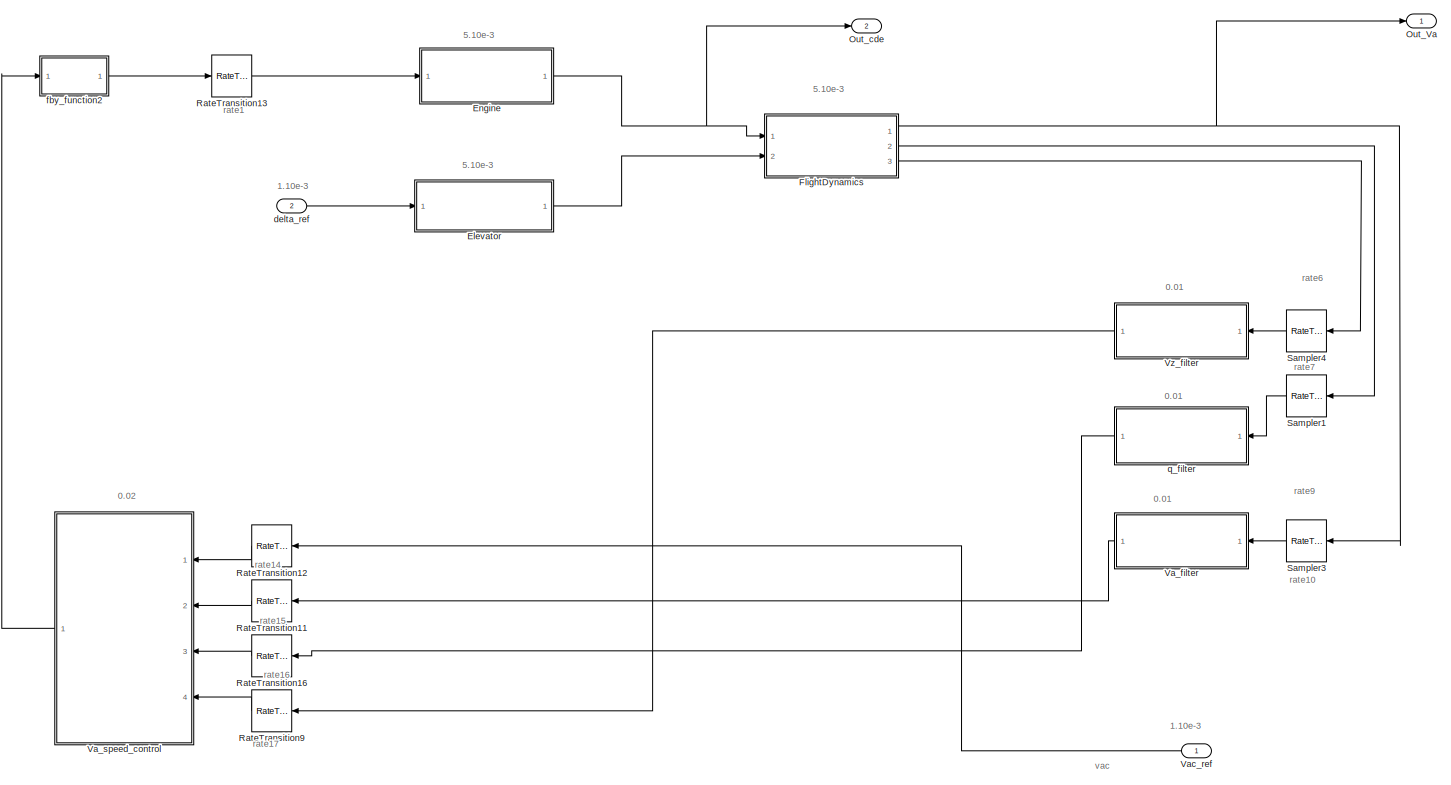
[diagram: root canvas - part 1/1, most of the canvas]
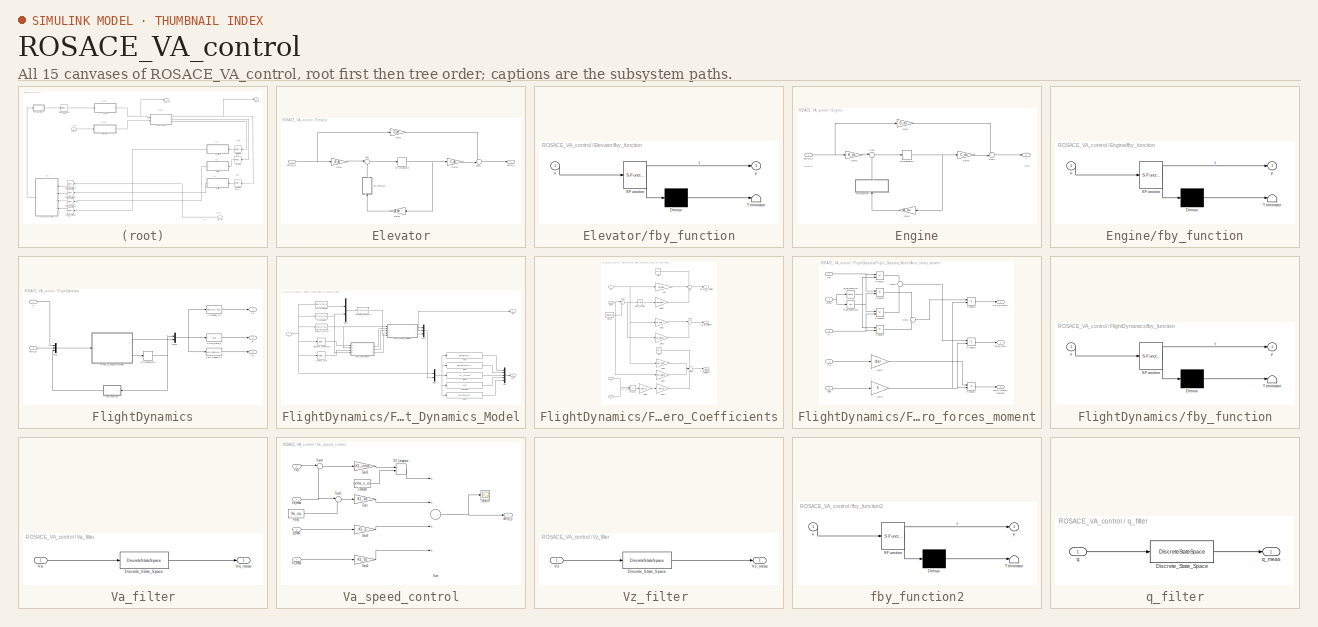
[diagram: thumbnail index - all 15 canvases of the model, root first then tree order]
MODEL ROSACE_VA_control
KIND model
BLOCK [SubSystem] Elevator
  FunctionWithSeparateData = off
  MaskHideContents = off
  MinAlgLoopOccurrences = off
  Opaque = off
  Ports = [1, 1]
  PropExecContextOutsideSubsystem = off
  RTWSystemCode = Auto
  RequestExecContextInheritance = off
  SID = 32
BLOCK [DiscreteIntegrator] Elevator/DT_Integrator
  ExternalReset = none
  ICPrevOutput = DiscIntNeverNeededParam
  ICPrevScaledInput = DiscIntNeverNeededParam
  InitialCondition = CI_de
  InitialConditionSource = internal
  IntegratorMethod = Integration: Forward Euler
  Ports = [1, 1]
  SID = 34
  SampleTime = dt_dx
BLOCK [Gain] Elevator/Gain
  Gain = D_de
  Multiplication = Matrix(K*u)
  SID = 35
  SaturateOnIntegerOverflow = off
BLOCK [Gain] Elevator/Gain1
  Gain = B_de
  Multiplication = Matrix(K*u)
  SID = 36
  SaturateOnIntegerOverflow = off
BLOCK [Gain] Elevator/Gain2
  Gain = A_de
  Multiplication = Matrix(K*u)
  SID = 37
  SaturateOnIntegerOverflow = off
BLOCK [Gain] Elevator/Gain3
  Gain = C_de
  Multiplication = Matrix(K*u)
  SID = 38
  SaturateOnIntegerOverflow = off
BLOCK [Sum] Elevator/Sum
  IconShape = round
  InputSameDT = off
  Inputs = |++
  Ports = [2, 1]
  SID = 39
  SaturateOnIntegerOverflow = off
BLOCK [Sum] Elevator/Sum1
  IconShape = round
  InputSameDT = off
  Inputs = ++|
  Ports = [2, 1]
  SID = 40
  SaturateOnIntegerOverflow = off
BLOCK [Outport] Elevator/delta_e
  IconDisplay = Port number
  SID = 41
BLOCK [Inport] Elevator/delta_e_c
  IconDisplay = Port number
  SID = 33
BLOCK [SubSystem] Elevator/fby_function
  ErrorFcn = Stateflow.Translate.translate
  FunctionWithSeparateData = off
  MaskDescription = Embedded MATLAB block
  MaskDisplay = bgColor = Simulink.Root.ColorString2Rgb(get_param(gcbh, 'BackgroundColor')); image(imread('private/eml_membrane_16.png','png','BackgroundColor',bgColor(1:3)),'center'); disp([10 10 'fcn']);  <repeated x4 — deduplicated; at blocks: fby_function, fby_function2>
  MaskHideContents = off
  MaskIconFrame = on
  MaskIconOpaque = off
  MaskIconRotate = none
  MaskIconUnits = normalized
  MaskPortRotate = default
  MaskSelfModifiable = on
  MaskType = Stateflow
  MinAlgLoopOccurrences = off
  Opaque = off
  PermitHierarchicalResolution = ExplicitOnly
  Ports = [1, 1]
  PropExecContextOutsideSubsystem = off
  RTWSystemCode = Auto
  RequestExecContextInheritance = off
  SFBlockType = MATLAB Function
  SID = 267
  TreatAsAtomicUnit = on
BLOCK [Demux] Elevator/fby_function/ Demux 
  Outputs = 1
  Ports = [1, 1]
  SID = 267::7
BLOCK [S-Function] Elevator/fby_function/ SFunction 
  EnableBusSupport = on
  FunctionName = sf_sfun
  PortCounts = [1 2]
  Ports = [1, 2]
  SID = 267::6
  Tag = Stateflow S-Function ROSACE_VA_control 4
BLOCK [Terminator] Elevator/fby_function/ Terminator 
  SID = 267::9
BLOCK [Inport] Elevator/fby_function/u
  IconDisplay = Port number
  SID = 267::1
BLOCK [Outport] Elevator/fby_function/y
  IconDisplay = Port number
  SID = 267::5
BLOCK [SubSystem] Engine
  FunctionWithSeparateData = off
  MaskHideContents = off
  MinAlgLoopOccurrences = off
  Opaque = off
  Ports = [1, 1]
  PropExecContextOutsideSubsystem = off
  RTWSystemCode = Auto
  RequestExecContextInheritance = off
  SID = 42
BLOCK [DiscreteIntegrator] Engine/DTIntegrator2
  ExternalReset = none
  ICPrevOutput = DiscIntNeverNeededParam
  ICPrevScaledInput = DiscIntNeverNeededParam
  InitialCondition = CI_dx
  InitialConditionSource = internal
  IntegratorMethod = Integration: Forward Euler
  Ports = [1, 1]
  SID = 44
  SampleTime = dt_dx
BLOCK [Gain] Engine/Gain
  Gain = D_dx
  Multiplication = Matrix(K*u)
  SID = 45
  SaturateOnIntegerOverflow = off
BLOCK [Gain] Engine/Gain1
  Gain = B_dx
  Multiplication = Matrix(K*u)
  SID = 46
  SaturateOnIntegerOverflow = off
BLOCK [Gain] Engine/Gain2
  Gain = A_dx
  Multiplication = Matrix(K*u)
  SID = 47
  SaturateOnIntegerOverflow = off
BLOCK [Gain] Engine/Gain3
  Gain = C_dx
  Multiplication = Matrix(K*u)
  SID = 48
  SaturateOnIntegerOverflow = off
BLOCK [Sum] Engine/Sum
  IconShape = round
  InputSameDT = off
  Inputs = |++
  Ports = [2, 1]
  SID = 49
  SaturateOnIntegerOverflow = off
BLOCK [Sum] Engine/Sum1
  IconShape = round
  InputSameDT = off
  Inputs = ++|
  Ports = [2, 1]
  SID = 50
  SaturateOnIntegerOverflow = off
BLOCK [Outport] Engine/T
  IconDisplay = Port number
  SID = 51
BLOCK [Inport] Engine/delta_x_c
  IconDisplay = Port number
  SID = 43
BLOCK [SubSystem] Engine/fby_function
  ErrorFcn = Stateflow.Translate.translate
  FunctionWithSeparateData = off
  MaskDescription = Embedded MATLAB block
  MaskHideContents = off
  MaskIconFrame = on
  MaskIconOpaque = off
  MaskIconRotate = none
  MaskIconUnits = normalized
  MaskPortRotate = default
  MaskSelfModifiable = on
  MaskType = Stateflow
  MinAlgLoopOccurrences = off
  Opaque = off
  PermitHierarchicalResolution = ExplicitOnly
  Ports = [1, 1]
  PropExecContextOutsideSubsystem = off
  RTWSystemCode = Auto
  RequestExecContextInheritance = off
  SFBlockType = MATLAB Function
  SID = 266
  TreatAsAtomicUnit = on
BLOCK [Demux] Engine/fby_function/ Demux 
  Outputs = 1
  Ports = [1, 1]
  SID = 266::7
BLOCK [S-Function] Engine/fby_function/ SFunction 
  EnableBusSupport = on
  FunctionName = sf_sfun
  PortCounts = [1 2]
  Ports = [1, 2]
  SID = 266::6
  Tag = Stateflow S-Function ROSACE_VA_control 3
BLOCK [Terminator] Engine/fby_function/ Terminator 
  SID = 266::9
BLOCK [Inport] Engine/fby_function/u
  IconDisplay = Port number
  SID = 266::1
BLOCK [Outport] Engine/fby_function/y
  IconDisplay = Port number
  SID = 266::5
BLOCK [SubSystem] FlightDynamics
  FunctionWithSeparateData = off
  MaskHideContents = off
  MinAlgLoopOccurrences = off
  Opaque = off
  Ports = [2, 3]
  PropExecContextOutsideSubsystem = off
  RTWSystemCode = Auto
  RequestExecContextInheritance = off
  SID = 52
BLOCK [Fcn] FlightDynamics/Airspeed_Va  
  Expr = sqrt(u(1)^2+u(2)^2)
  SID = 55
BLOCK [DiscreteIntegrator] FlightDynamics/DTIntegrator3
  ExternalReset = none
  ICPrevOutput = DiscIntNeverNeededParam
  ICPrevScaledInput = DiscIntNeverNeededParam
  InitialCondition = CI_FD
  InitialConditionSource = internal
  IntegratorMethod = Integration: Forward Euler
  Ports = [1, 1]
  SID = 57
  SampleTime = dt_dx
BLOCK [SubSystem] FlightDynamics/Flight_Dynamics_Model
  FunctionWithSeparateData = off
  MaskHideContents = off
  MinAlgLoopOccurrences = off
  Opaque = off
  Ports = [1, 2]
  PropExecContextOutsideSubsystem = off
  RTWSystemCode = Auto
  RequestExecContextInheritance = off
  SID = 58
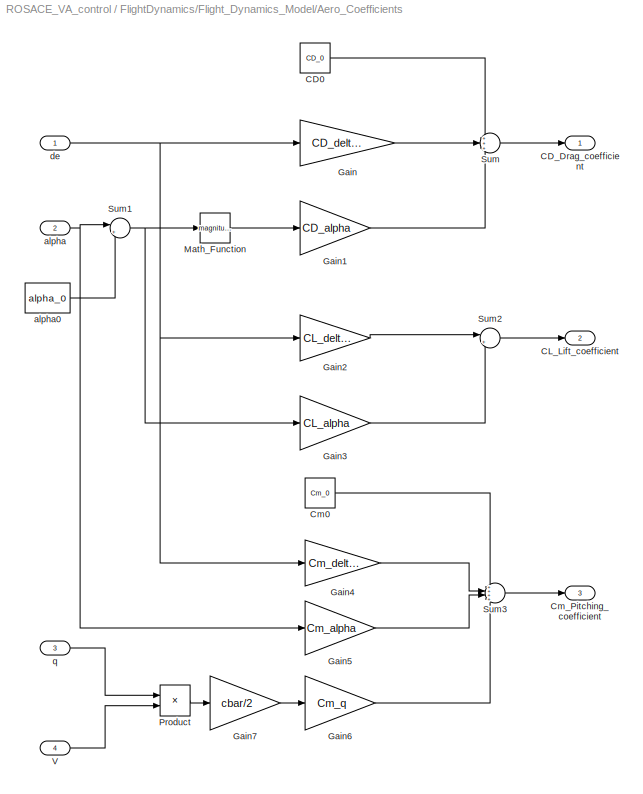
BLOCK [SubSystem] FlightDynamics/Flight_Dynamics_Model/Aero_Coefficients
  FunctionWithSeparateData = off
  MaskHideContents = off
  MinAlgLoopOccurrences = off
  Opaque = off
  Ports = [4, 3]
  PropExecContextOutsideSubsystem = off
  RTWSystemCode = Auto
  RequestExecContextInheritance = off
  SID = 233
BLOCK [Constant] FlightDynamics/Flight_Dynamics_Model/Aero_Coefficients/CD0
  SID = 238
  SampleTime = -1
  Value = CD_0
BLOCK [Outport] FlightDynamics/Flight_Dynamics_Model/Aero_Coefficients/CD_Drag_coefficient
  IconDisplay = Port number
  SID = 255
BLOCK [Outport] FlightDynamics/Flight_Dynamics_Model/Aero_Coefficients/CL_Lift_coefficient
  IconDisplay = Port number
  Port = 2
  SID = 256
BLOCK [Constant] FlightDynamics/Flight_Dynamics_Model/Aero_Coefficients/Cm0
  SID = 239
  SampleTime = -1
  Value = Cm_0
BLOCK [Outport] FlightDynamics/Flight_Dynamics_Model/Aero_Coefficients/Cm_Pitching_coefficient
  IconDisplay = Port number
  Port = 3
  SID = 257
BLOCK [Gain] FlightDynamics/Flight_Dynamics_Model/Aero_Coefficients/Gain
  Gain = CD_deltae
  SID = 240
  SaturateOnIntegerOverflow = off
BLOCK [Gain] FlightDynamics/Flight_Dynamics_Model/Aero_Coefficients/Gain1
  Gain = CD_alpha
  SID = 241
  SaturateOnIntegerOverflow = off
BLOCK [Gain] FlightDynamics/Flight_Dynamics_Model/Aero_Coefficients/Gain2
  Gain = CL_deltae
  SID = 242
  SaturateOnIntegerOverflow = off
BLOCK [Gain] FlightDynamics/Flight_Dynamics_Model/Aero_Coefficients/Gain3
  Gain = CL_alpha
  SID = 243
  SaturateOnIntegerOverflow = off
BLOCK [Gain] FlightDynamics/Flight_Dynamics_Model/Aero_Coefficients/Gain4
  Gain = Cm_deltae
  SID = 244
  SaturateOnIntegerOverflow = off
BLOCK [Gain] FlightDynamics/Flight_Dynamics_Model/Aero_Coefficients/Gain5
  Gain = Cm_alpha
  SID = 245
  SaturateOnIntegerOverflow = off
BLOCK [Gain] FlightDynamics/Flight_Dynamics_Model/Aero_Coefficients/Gain6
  Gain = Cm_q
  SID = 246
  SaturateOnIntegerOverflow = off
BLOCK [Gain] FlightDynamics/Flight_Dynamics_Model/Aero_Coefficients/Gain7
  Gain = cbar/2
  SID = 247
  SaturateOnIntegerOverflow = off
BLOCK [Math] FlightDynamics/Flight_Dynamics_Model/Aero_Coefficients/Math_Function
  Operator = magnitude^2
  Ports = [1, 1]
  SID = 248
BLOCK [Product] FlightDynamics/Flight_Dynamics_Model/Aero_Coefficients/Product
  InputSameDT = off
  Inputs = */
  Ports = [2, 1]
  SID = 249
  SaturateOnIntegerOverflow = off
BLOCK [Sum] FlightDynamics/Flight_Dynamics_Model/Aero_Coefficients/Sum
  IconShape = round
  InputSameDT = off
  Inputs = +++
  Ports = [3, 1]
  SID = 250
  SaturateOnIntegerOverflow = off
BLOCK [Sum] FlightDynamics/Flight_Dynamics_Model/Aero_Coefficients/Sum1
  IconShape = round
  InputSameDT = off
  Inputs = |+-
  Ports = [2, 1]
  SID = 251
  SaturateOnIntegerOverflow = off
BLOCK [Sum] FlightDynamics/Flight_Dynamics_Model/Aero_Coefficients/Sum2
  IconShape = round
  InputSameDT = off
  Inputs = |++
  Ports = [2, 1]
  SID = 252
  SaturateOnIntegerOverflow = off
BLOCK [Sum] FlightDynamics/Flight_Dynamics_Model/Aero_Coefficients/Sum3
  IconShape = round
  InputSameDT = off
  Inputs = ++++
  Ports = [4, 1]
  SID = 253
  SaturateOnIntegerOverflow = off
BLOCK [Inport] FlightDynamics/Flight_Dynamics_Model/Aero_Coefficients/V
  IconDisplay = Port number
  Port = 4
  SID = 237
BLOCK [Inport] FlightDynamics/Flight_Dynamics_Model/Aero_Coefficients/alpha
  IconDisplay = Port number
  Port = 2
  SID = 235
BLOCK [Constant] FlightDynamics/Flight_Dynamics_Model/Aero_Coefficients/alpha0
  SID = 254
  SampleTime = -1
  Value = alpha_0
BLOCK [Inport] FlightDynamics/Flight_Dynamics_Model/Aero_Coefficients/de
  IconDisplay = Port number
  SID = 234
BLOCK [Inport] FlightDynamics/Flight_Dynamics_Model/Aero_Coefficients/q
  IconDisplay = Port number
  Port = 3
  SID = 236
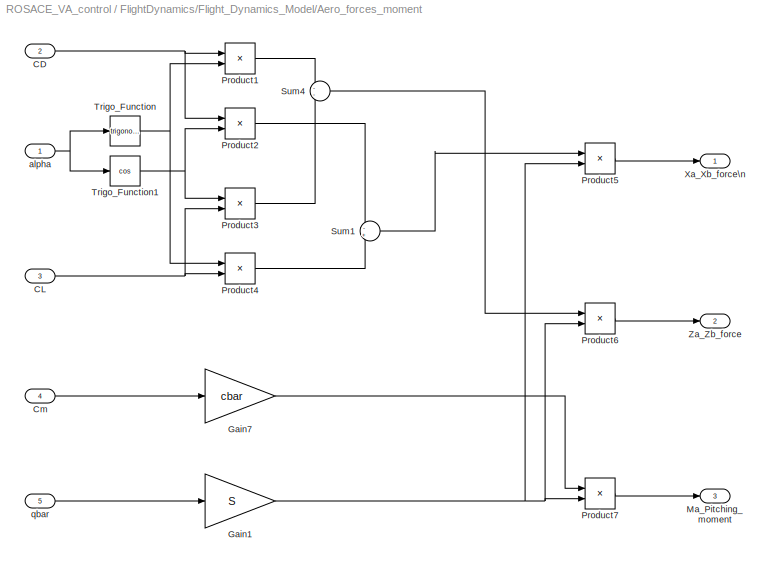
BLOCK [SubSystem] FlightDynamics/Flight_Dynamics_Model/Aero_forces_moment
  FunctionWithSeparateData = off
  MaskHideContents = off
  MinAlgLoopOccurrences = off
  Opaque = off
  Ports = [5, 3]
  PropExecContextOutsideSubsystem = off
  RTWSystemCode = Auto
  RequestExecContextInheritance = off
  SID = 85
BLOCK [Inport] FlightDynamics/Flight_Dynamics_Model/Aero_forces_moment/CD
  IconDisplay = Port number
  Port = 2
  SID = 87
BLOCK [Inport] FlightDynamics/Flight_Dynamics_Model/Aero_forces_moment/CL
  IconDisplay = Port number
  Port = 3
  SID = 88
BLOCK [Inport] FlightDynamics/Flight_Dynamics_Model/Aero_forces_moment/Cm
  IconDisplay = Port number
  Port = 4
  SID = 89
BLOCK [Gain] FlightDynamics/Flight_Dynamics_Model/Aero_forces_moment/Gain1
  Gain = S
  SID = 91
  SaturateOnIntegerOverflow = off
BLOCK [Gain] FlightDynamics/Flight_Dynamics_Model/Aero_forces_moment/Gain7
  Gain = cbar
  SID = 92
  SaturateOnIntegerOverflow = off
BLOCK [Outport] FlightDynamics/Flight_Dynamics_Model/Aero_forces_moment/Ma_Pitching_moment
  IconDisplay = Port number
  Port = 3
  SID = 106
BLOCK [Product] FlightDynamics/Flight_Dynamics_Model/Aero_forces_moment/Product1
  InputSameDT = off
  Ports = [2, 1]
  SID = 93
  SaturateOnIntegerOverflow = off
BLOCK [Product] FlightDynamics/Flight_Dynamics_Model/Aero_forces_moment/Product2
  InputSameDT = off
  Ports = [2, 1]
  SID = 94
  SaturateOnIntegerOverflow = off
BLOCK [Product] FlightDynamics/Flight_Dynamics_Model/Aero_forces_moment/Product3
  InputSameDT = off
  Ports = [2, 1]
  SID = 95
  SaturateOnIntegerOverflow = off
BLOCK [Product] FlightDynamics/Flight_Dynamics_Model/Aero_forces_moment/Product4
  InputSameDT = off
  Ports = [2, 1]
  SID = 96
  SaturateOnIntegerOverflow = off
BLOCK [Product] FlightDynamics/Flight_Dynamics_Model/Aero_forces_moment/Product5
  InputSameDT = off
  Ports = [2, 1]
  SID = 97
  SaturateOnIntegerOverflow = off
BLOCK [Product] FlightDynamics/Flight_Dynamics_Model/Aero_forces_moment/Product6
  InputSameDT = off
  Ports = [2, 1]
  SID = 98
  SaturateOnIntegerOverflow = off
BLOCK [Product] FlightDynamics/Flight_Dynamics_Model/Aero_forces_moment/Product7
  InputSameDT = off
  Ports = [2, 1]
  SID = 99
  SaturateOnIntegerOverflow = off
BLOCK [Sum] FlightDynamics/Flight_Dynamics_Model/Aero_forces_moment/Sum1
  IconShape = round
  InputSameDT = off
  Inputs = -+
  Ports = [2, 1]
  SID = 100
  SaturateOnIntegerOverflow = off
BLOCK [Sum] FlightDynamics/Flight_Dynamics_Model/Aero_forces_moment/Sum4
  IconShape = round
  InputSameDT = off
  Inputs = --
  Ports = [2, 1]
  SID = 101
  SaturateOnIntegerOverflow = off
BLOCK [Trigonometry] FlightDynamics/Flight_Dynamics_Model/Aero_forces_moment/Trigo_Function
  Ports = [1, 1]
  SID = 102
BLOCK [Trigonometry] FlightDynamics/Flight_Dynamics_Model/Aero_forces_moment/Trigo_Function1
  Operator = cos
  Ports = [1, 1]
  SID = 103
BLOCK [Outport] FlightDynamics/Flight_Dynamics_Model/Aero_forces_moment/Xa_Xb_force\n
  IconDisplay = Port number
  SID = 104
BLOCK [Outport] FlightDynamics/Flight_Dynamics_Model/Aero_forces_moment/Za_Zb_force
  IconDisplay = Port number
  Port = 2
  SID = 105
BLOCK [Inport] FlightDynamics/Flight_Dynamics_Model/Aero_forces_moment/alpha
  IconDisplay = Port number
  SID = 86
BLOCK [Inport] FlightDynamics/Flight_Dynamics_Model/Aero_forces_moment/qbar
  IconDisplay = Port number
  Port = 5
  SID = 90
BLOCK [Fcn] FlightDynamics/Flight_Dynamics_Model/Angle_of_attack
  Expr = atan(u(4)/u(3))
  SID = 116
BLOCK [Fcn] FlightDynamics/Flight_Dynamics_Model/Dynamic_pressure
  Expr = 0.5*u(1)*u(2)^2
  SID = 120
BLOCK [Selector] FlightDynamics/Flight_Dynamics_Model/Elevator_deflection
  IndexOptions = Index vector (dialog)
  Indices = [2]
  InputPortWidth = 7
  OutputSizes = 1
  Ports = [1, 1]
  SID = 117
BLOCK [Mux] FlightDynamics/Flight_Dynamics_Model/Mux
  DisplayOption = bar
  Inputs = 5
  Ports = [5, 1]
  SID = 108
BLOCK [Mux] FlightDynamics/Flight_Dynamics_Model/Mux1
  DisplayOption = bar
  Inputs = 2
  Ports = [2, 1]
  SID = 109
BLOCK [Mux] FlightDynamics/Flight_Dynamics_Model/Mux2
  DisplayOption = bar
  Inputs = 3
  Ports = [3, 1]
  SID = 110
BLOCK [Mux] FlightDynamics/Flight_Dynamics_Model/Mux3
  DisplayOption = bar
  Inputs = 2
  Ports = [2, 1]
  SID = 111
BLOCK [Fcn] FlightDynamics/Flight_Dynamics_Model/V_Airspeed
  Expr = sqrt(u(3)^2+u(4)^2)
  SID = 115
BLOCK [Outport] FlightDynamics/Flight_Dynamics_Model/Za
  IconDisplay = Port number
  SID = 127
BLOCK [Fcn] FlightDynamics/Flight_Dynamics_Model/hdot
  Expr = u(3)*sin(u(6))-u(4)*cos(u(6))
  SID = 118
BLOCK [Selector] FlightDynamics/Flight_Dynamics_Model/q_Pitch_rate
  IndexOptions = Index vector (dialog)
  Indices = [5]
  InputPortWidth = 7
  OutputSizes = 1
  Ports = [1, 1]
  SID = 119
BLOCK [Fcn] FlightDynamics/Flight_Dynamics_Model/qdot
  Expr = 1/I_y*u(10)
  SID = 121
BLOCK [Fcn] FlightDynamics/Flight_Dynamics_Model/rho_Air_density
  Expr = rho0*(1+T0_h/T0_0*u(7))^(-g0/(Rs*T0_h)-1)
  SID = 122
BLOCK [Fcn] FlightDynamics/Flight_Dynamics_Model/thetadot
  Expr = u(5)
  SID = 124
BLOCK [Fcn] FlightDynamics/Flight_Dynamics_Model/udot
  Expr = -g0*sin(u(6))-u(5)*u(4)+1/mass*(u(1)+u(8))
  SID = 125
BLOCK [Fcn] FlightDynamics/Flight_Dynamics_Model/wdot
  Expr = g0*cos(u(6))+u(5)*u(3)+1/mass*u(9)
  SID = 126
BLOCK [Inport] FlightDynamics/Flight_Dynamics_Model/x
  IconDisplay = Port number
  SID = 59
BLOCK [Outport] FlightDynamics/Flight_Dynamics_Model/xdot
  IconDisplay = Port number
  Port = 2
  SID = 128
BLOCK [Mux] FlightDynamics/Mux
  DisplayOption = bar
  Inputs = 3
  Ports = [3, 1]
  SID = 129
BLOCK [Mux] FlightDynamics/Mux1
  DisplayOption = bar
  Inputs = 2
  Ports = [2, 1]
  SID = 130
BLOCK [Fcn] FlightDynamics/Pitch_Rate_q 
  Expr = u(3)
  SID = 132
BLOCK [Inport] FlightDynamics/T
  IconDisplay = Signal name
  SID = 53
BLOCK [Outport] FlightDynamics/Va
  IconDisplay = Port number
  SID = 134
BLOCK [Fcn] FlightDynamics/Vert_Speed_Vz
  Expr = u(2)*cos(u(4))-u(1)*sin(u(4))
  SID = 133
BLOCK [Outport] FlightDynamics/Vz
  IconDisplay = Port number
  Port = 3
  SID = 137
BLOCK [Inport] FlightDynamics/delta_e
  IconDisplay = Port number
  Port = 2
  SID = 54
BLOCK [SubSystem] FlightDynamics/fby_function
  ErrorFcn = Stateflow.Translate.translate
  FunctionWithSeparateData = off
  MaskDescription = Embedded MATLAB block
  MaskHideContents = off
  MaskIconFrame = on
  MaskIconOpaque = off
  MaskIconRotate = none
  MaskIconUnits = normalized
  MaskPortRotate = default
  MaskSelfModifiable = on
  MaskType = Stateflow
  MinAlgLoopOccurrences = off
  Opaque = off
  PermitHierarchicalResolution = ExplicitOnly
  Ports = [1, 1]
  PropExecContextOutsideSubsystem = off
  RTWSystemCode = Auto
  RequestExecContextInheritance = off
  SFBlockType = MATLAB Function
  SID = 261
  TreatAsAtomicUnit = on
BLOCK [Demux] FlightDynamics/fby_function/ Demux 
  Outputs = 1
  Ports = [1, 1]
  SID = 261::7
BLOCK [S-Function] FlightDynamics/fby_function/ SFunction 
  EnableBusSupport = on
  FunctionName = sf_sfun
  PortCounts = [1 2]
  Ports = [1, 2]
  SID = 261::6
  Tag = Stateflow S-Function ROSACE_VA_control 2
BLOCK [Terminator] FlightDynamics/fby_function/ Terminator 
  SID = 261::9
BLOCK [Inport] FlightDynamics/fby_function/u
  IconDisplay = Port number
  SID = 261::1
BLOCK [Outport] FlightDynamics/fby_function/y
  IconDisplay = Port number
  SID = 261::5
BLOCK [Outport] FlightDynamics/q
  IconDisplay = Port number
  Port = 2
  SID = 136
BLOCK [Outport] Out_Va
  IconDisplay = Port number
  PortDimensions = 1
  SID = 263
  SampleTime = dt_dx
BLOCK [Outport] Out_cde
  IconDisplay = Port number
  Port = 2
  PortDimensions = 1
  SID = 264
  SampleTime = dt_dx
BLOCK [RateTransition] RateTransition11
  OutPortSampleTime = Ts_K1
  SID = 140
BLOCK [RateTransition] RateTransition12
  OutPortSampleTime = Ts_K1
  SID = 141
BLOCK [RateTransition] RateTransition13
  OutPortSampleTime = dt_dx
  SID = 142
  X0 = delta_x_eq
BLOCK [RateTransition] RateTransition16
  OutPortSampleTime = Ts_K1
  SID = 145
BLOCK [RateTransition] RateTransition9
  OutPortSampleTime = Ts_K1
  SID = 150
BLOCK [RateTransition] Sampler1
  OutPortSampleTime = Ts_f_q
  SID = 152
BLOCK [RateTransition] Sampler3
  AttributesFormatString = %<Name>
  OutPortSampleTime = Ts_f_Va
  SID = 154
  X0 = Va_eq
BLOCK [RateTransition] Sampler4
  OutPortSampleTime = Ts_f_Vz
  SID = 155
BLOCK [SubSystem] Va_filter
  FunctionWithSeparateData = off
  MaskHideContents = off
  MinAlgLoopOccurrences = off
  Opaque = off
  Ports = [1, 1]
  PropExecContextOutsideSubsystem = off
  RTWSystemCode = Auto
  RequestExecContextInheritance = off
  SID = 157
BLOCK [DiscreteStateSpace] Va_filter/Discrete_State_Space
  A = Az_Va
  B = Bz_Va
  C = Cz_Va
  D = Dz_Va
  SID = 159
  SampleTime = Ts_f_Va
  X0 = CIz_Va
BLOCK [Inport] Va_filter/Va
  IconDisplay = Port number
  SID = 158
BLOCK [Outport] Va_filter/Va_meas
  IconDisplay = Port number
  SID = 160
BLOCK [SubSystem] Va_speed_control
  FunctionWithSeparateData = off
  MaskHideContents = off
  MinAlgLoopOccurrences = off
  Opaque = off
  Ports = [4, 1]
  PropExecContextOutsideSubsystem = off
  RTWSystemCode = Auto
  RequestExecContextInheritance = off
  SID = 161
BLOCK [Constant] Va_speed_control/Constant
  SID = 166
  SampleTime = Ts_K1
  Value = delta_x_eq
BLOCK [DiscreteIntegrator] Va_speed_control/DT_Integrator
  ExternalReset = none
  ICPrevOutput = DiscIntNeverNeededParam
  ICPrevScaledInput = DiscIntNeverNeededParam
  InitialConditionSource = external
  IntegratorMethod = Integration: Forward Euler
  Ports = [2, 1]
  SID = 167
  SampleTime = Ts_K1
BLOCK [Gain] Va_speed_control/Gain
  Gain = K1_Va
  SID = 168
  SaturateOnIntegerOverflow = off
BLOCK [Gain] Va_speed_control/Gain1
  Gain = K1_intVa
  SID = 169
  SaturateOnIntegerOverflow = off
BLOCK [Gain] Va_speed_control/Gain4
  Gain = K1_q
  SID = 170
  SaturateOnIntegerOverflow = off
BLOCK [Gain] Va_speed_control/Gain5
  Gain = K1_Vz
  SID = 171
  SaturateOnIntegerOverflow = off
BLOCK [Sum] Va_speed_control/Sum
  InputSameDT = off
  Inputs = ++++
  Ports = [4, 1]
  SID = 172
  SampleTime = Ts_K1
  SaturateOnIntegerOverflow = off
BLOCK [Sum] Va_speed_control/Sum1
  IconShape = round
  InputSameDT = off
  Inputs = |+-
  Ports = [2, 1]
  SID = 173
  SampleTime = Ts_K1
  SaturateOnIntegerOverflow = off
BLOCK [Sum] Va_speed_control/Sum4
  IconShape = round
  InputSameDT = off
  Inputs = |+-
  Ports = [2, 1]
  SID = 174
  SampleTime = Ts_K1
  SaturateOnIntegerOverflow = off
BLOCK [Scope] Va_speed_control/Throttle
  DataFormat = Array
  Floating = off
  LimitDataPoints = off
  NumInputPorts = 1
  Ports = [1]
  SID = 175
  SampleTime = 0
  SaveName = ScopeData5
  SaveToWorkspace = on
  YMax = 10100.5
  YMin = 10094
BLOCK [Inport] Va_speed_control/Va_c
  IconDisplay = Port number
  SID = 162
BLOCK [Constant] Va_speed_control/Va_eq
  SID = 176
  SampleTime = Ts_K1
  Value = Va_eq
BLOCK [Inport] Va_speed_control/Va_meas
  IconDisplay = Port number
  Port = 2
  SID = 163
BLOCK [Inport] Va_speed_control/Vz_meas
  IconDisplay = Port number
  Port = 4
  SID = 165
BLOCK [Outport] Va_speed_control/delta_x_c
  IconDisplay = Port number
  SID = 177
BLOCK [Inport] Va_speed_control/q_meas
  IconDisplay = Port number
  Port = 3
  SID = 164
BLOCK [Inport] Vac_ref
  IconDisplay = Port number
  SID = 259
BLOCK [SubSystem] Vz_filter 
  FunctionWithSeparateData = off
  MaskHideContents = off
  MinAlgLoopOccurrences = off
  Opaque = off
  Ports = [1, 1]
  PropExecContextOutsideSubsystem = off
  RTWSystemCode = Auto
  RequestExecContextInheritance = off
  SID = 178
BLOCK [DiscreteStateSpace] Vz_filter /Discrete_State_Space
  A = Az_Vz
  B = Bz_Vz
  C = Cz_Vz
  D = Dz_Vz
  SID = 180
  SampleTime = Ts_f_Vz
  X0 = CIz_Vz
BLOCK [Inport] Vz_filter /Vz
  IconDisplay = Port number
  SID = 179
BLOCK [Outport] Vz_filter /Vz_meas
  IconDisplay = Port number
  SID = 181
BLOCK [Inport] delta_ref
  IconDisplay = Port number
  Port = 2
  SID = 262
BLOCK [SubSystem] fby_function2
  ErrorFcn = Stateflow.Translate.translate
  FunctionWithSeparateData = off
  MaskDescription = Embedded MATLAB block
  MaskHideContents = off
  MaskIconFrame = on
  MaskIconOpaque = off
  MaskIconRotate = none
  MaskIconUnits = normalized
  MaskPortRotate = default
  MaskSelfModifiable = on
  MaskType = Stateflow
  MinAlgLoopOccurrences = off
  Opaque = off
  PermitHierarchicalResolution = ExplicitOnly
  Ports = [1, 1]
  PropExecContextOutsideSubsystem = off
  RTWSystemCode = Auto
  RequestExecContextInheritance = off
  SFBlockType = MATLAB Function
  SID = 270
  TreatAsAtomicUnit = on
BLOCK [Demux] fby_function2/ Demux 
  Outputs = 1
  Ports = [1, 1]
  SID = 270::7
BLOCK [S-Function] fby_function2/ SFunction 
  EnableBusSupport = on
  FunctionName = sf_sfun
  PortCounts = [1 2]
  Ports = [1, 2]
  SID = 270::6
  Tag = Stateflow S-Function ROSACE_VA_control 1
BLOCK [Terminator] fby_function2/ Terminator 
  SID = 270::9
BLOCK [Inport] fby_function2/u
  IconDisplay = Port number
  SID = 270::1
BLOCK [Outport] fby_function2/y
  IconDisplay = Port number
  SID = 270::5
BLOCK [SubSystem] q_filter
  FunctionWithSeparateData = off
  MaskHideContents = off
  MinAlgLoopOccurrences = off
  Opaque = off
  Ports = [1, 1]
  PropExecContextOutsideSubsystem = off
  RTWSystemCode = Auto
  RequestExecContextInheritance = off
  SID = 204
BLOCK [DiscreteStateSpace] q_filter/Discrete_State_Space
  A = Az_q
  B = Bz_q
  C = Cz_q
  D = Dz_q
  SID = 206
  SampleTime = Ts_f_q
  X0 = CIz_q
BLOCK [Inport] q_filter/q
  IconDisplay = Port number
  SID = 205
BLOCK [Outport] q_filter/q_meas
  IconDisplay = Port number
  SID = 207
ANNOTATION (root): 0.01
ANNOTATION (root): 0.02
ANNOTATION (root): 1.10e-3
ANNOTATION (root): 5.10e-3
ANNOTATION (root): rate1
ANNOTATION (root): rate10
ANNOTATION (root): rate14
ANNOTATION (root): rate15
ANNOTATION (root): rate16
ANNOTATION (root): rate17
ANNOTATION (root): rate6
ANNOTATION (root): rate7
ANNOTATION (root): rate9
ANNOTATION (root): vac
ANNOTATION Engine: Throttle
ANNOTATION Engine: Thrust
ANNOTATION FlightDynamics: T
NET Elevator/DT_Integrator:1 -> Elevator/Gain2:1, Elevator/Gain3:1
LINE Elevator/Gain1:1 -> Elevator/Sum:1
LINE Elevator/Gain2:1 -> Elevator/fby_function:1
LINE Elevator/Gain3:1 -> Elevator/Sum1:2
LINE Elevator/Gain:1 -> Elevator/Sum1:1
LINE Elevator/Sum1:1 -> Elevator/delta_e:1
LINE Elevator/Sum:1 -> Elevator/DT_Integrator:1
NET Elevator/delta_e_c:1 -> Elevator/Gain1:1, Elevator/Gain:1
LINE Elevator/fby_function/ Demux :1 -> Elevator/fby_function/ Terminator :1
LINE Elevator/fby_function/ SFunction :1 -> Elevator/fby_function/ Demux :1
LINE Elevator/fby_function/ SFunction :2 -> Elevator/fby_function/y:1
LINE Elevator/fby_function/u:1 -> Elevator/fby_function/ SFunction :1
LINE Elevator/fby_function:1 -> Elevator/Sum:2
LINE Elevator:1 -> FlightDynamics:2
NET Engine/DTIntegrator2:1 -> Engine/Gain2:1, Engine/Gain3:1
LINE Engine/Gain1:1 -> Engine/Sum:1
LINE Engine/Gain2:1 -> Engine/fby_function:1
LINE Engine/Gain3:1 -> Engine/Sum1:2
LINE Engine/Gain:1 -> Engine/Sum1:1
LINE Engine/Sum1:1 -> Engine/T:1
LINE Engine/Sum:1 -> Engine/DTIntegrator2:1
NET Engine/delta_x_c:1 -> Engine/Gain1:1, Engine/Gain:1
LINE Engine/fby_function/ Demux :1 -> Engine/fby_function/ Terminator :1
LINE Engine/fby_function/ SFunction :1 -> Engine/fby_function/ Demux :1
LINE Engine/fby_function/ SFunction :2 -> Engine/fby_function/y:1
LINE Engine/fby_function/u:1 -> Engine/fby_function/ SFunction :1
LINE Engine/fby_function:1 -> Engine/Sum:2
NET Engine:1 -> FlightDynamics:1, Out_cde:1
LINE FlightDynamics/Airspeed_Va  :1 -> FlightDynamics/Va:1
NET FlightDynamics/DTIntegrator3:1 -> FlightDynamics/Mux1:1, FlightDynamics/fby_function:1
LINE FlightDynamics/Flight_Dynamics_Model/Aero_Coefficients/CD0:1 -> FlightDynamics/Flight_Dynamics_Model/Aero_Coefficients/Sum:1
LINE FlightDynamics/Flight_Dynamics_Model/Aero_Coefficients/Cm0:1 -> FlightDynamics/Flight_Dynamics_Model/Aero_Coefficients/Sum3:1
LINE FlightDynamics/Flight_Dynamics_Model/Aero_Coefficients/Gain1:1 -> FlightDynamics/Flight_Dynamics_Model/Aero_Coefficients/Sum:3
LINE FlightDynamics/Flight_Dynamics_Model/Aero_Coefficients/Gain2:1 -> FlightDynamics/Flight_Dynamics_Model/Aero_Coefficients/Sum2:1
LINE FlightDynamics/Flight_Dynamics_Model/Aero_Coefficients/Gain3:1 -> FlightDynamics/Flight_Dynamics_Model/Aero_Coefficients/Sum2:2
LINE FlightDynamics/Flight_Dynamics_Model/Aero_Coefficients/Gain4:1 -> FlightDynamics/Flight_Dynamics_Model/Aero_Coefficients/Sum3:2
LINE FlightDynamics/Flight_Dynamics_Model/Aero_Coefficients/Gain5:1 -> FlightDynamics/Flight_Dynamics_Model/Aero_Coefficients/Sum3:3
LINE FlightDynamics/Flight_Dynamics_Model/Aero_Coefficients/Gain6:1 -> FlightDynamics/Flight_Dynamics_Model/Aero_Coefficients/Sum3:4
LINE FlightDynamics/Flight_Dynamics_Model/Aero_Coefficients/Gain7:1 -> FlightDynamics/Flight_Dynamics_Model/Aero_Coefficients/Gain6:1
LINE FlightDynamics/Flight_Dynamics_Model/Aero_Coefficients/Gain:1 -> FlightDynamics/Flight_Dynamics_Model/Aero_Coefficients/Sum:2
LINE FlightDynamics/Flight_Dynamics_Model/Aero_Coefficients/Math_Function:1 -> FlightDynamics/Flight_Dynamics_Model/Aero_Coefficients/Gain1:1
LINE FlightDynamics/Flight_Dynamics_Model/Aero_Coefficients/Product:1 -> FlightDynamics/Flight_Dynamics_Model/Aero_Coefficients/Gain7:1
NET FlightDynamics/Flight_Dynamics_Model/Aero_Coefficients/Sum1:1 -> FlightDynamics/Flight_Dynamics_Model/Aero_Coefficients/Gain3:1, FlightDynamics/Flight_Dynamics_Model/Aero_Coefficients/Math_Function:1
LINE FlightDynamics/Flight_Dynamics_Model/Aero_Coefficients/Sum2:1 -> FlightDynamics/Flight_Dynamics_Model/Aero_Coefficients/CL_Lift_coefficient:1
LINE FlightDynamics/Flight_Dynamics_Model/Aero_Coefficients/Sum3:1 -> FlightDynamics/Flight_Dynamics_Model/Aero_Coefficients/Cm_Pitching_coefficient:1
LINE FlightDynamics/Flight_Dynamics_Model/Aero_Coefficients/Sum:1 -> FlightDynamics/Flight_Dynamics_Model/Aero_Coefficients/CD_Drag_coefficient:1
LINE FlightDynamics/Flight_Dynamics_Model/Aero_Coefficients/V:1 -> FlightDynamics/Flight_Dynamics_Model/Aero_Coefficients/Product:2
LINE FlightDynamics/Flight_Dynamics_Model/Aero_Coefficients/alpha0:1 -> FlightDynamics/Flight_Dynamics_Model/Aero_Coefficients/Sum1:2
NET FlightDynamics/Flight_Dynamics_Model/Aero_Coefficients/alpha:1 -> FlightDynamics/Flight_Dynamics_Model/Aero_Coefficients/Gain5:1, FlightDynamics/Flight_Dynamics_Model/Aero_Coefficients/Sum1:1
NET FlightDynamics/Flight_Dynamics_Model/Aero_Coefficients/de:1 -> FlightDynamics/Flight_Dynamics_Model/Aero_Coefficients/Gain2:1, FlightDynamics/Flight_Dynamics_Model/Aero_Coefficients/Gain4:1, FlightDynamics/Flight_Dynamics_Model/Aero_Coefficients/Gain:1
LINE FlightDynamics/Flight_Dynamics_Model/Aero_Coefficients/q:1 -> FlightDynamics/Flight_Dynamics_Model/Aero_Coefficients/Product:1
LINE FlightDynamics/Flight_Dynamics_Model/Aero_Coefficients:1 -> FlightDynamics/Flight_Dynamics_Model/Aero_forces_moment:2
LINE FlightDynamics/Flight_Dynamics_Model/Aero_Coefficients:2 -> FlightDynamics/Flight_Dynamics_Model/Aero_forces_moment:3
LINE FlightDynamics/Flight_Dynamics_Model/Aero_Coefficients:3 -> FlightDynamics/Flight_Dynamics_Model/Aero_forces_moment:4
NET FlightDynamics/Flight_Dynamics_Model/Aero_forces_moment/CD:1 -> FlightDynamics/Flight_Dynamics_Model/Aero_forces_moment/Product1:1, FlightDynamics/Flight_Dynamics_Model/Aero_forces_moment/Product2:1
NET FlightDynamics/Flight_Dynamics_Model/Aero_forces_moment/CL:1 -> FlightDynamics/Flight_Dynamics_Model/Aero_forces_moment/Product3:2, FlightDynamics/Flight_Dynamics_Model/Aero_forces_moment/Product4:2
LINE FlightDynamics/Flight_Dynamics_Model/Aero_forces_moment/Cm:1 -> FlightDynamics/Flight_Dynamics_Model/Aero_forces_moment/Gain7:1
NET FlightDynamics/Flight_Dynamics_Model/Aero_forces_moment/Gain1:1 -> FlightDynamics/Flight_Dynamics_Model/Aero_forces_moment/Product5:2, FlightDynamics/Flight_Dynamics_Model/Aero_forces_moment/Product6:2, FlightDynamics/Flight_Dynamics_Model/Aero_forces_moment/Product7:2
LINE FlightDynamics/Flight_Dynamics_Model/Aero_forces_moment/Gain7:1 -> FlightDynamics/Flight_Dynamics_Model/Aero_forces_moment/Product7:1
LINE FlightDynamics/Flight_Dynamics_Model/Aero_forces_moment/Product1:1 -> FlightDynamics/Flight_Dynamics_Model/Aero_forces_moment/Sum4:1
LINE FlightDynamics/Flight_Dynamics_Model/Aero_forces_moment/Product2:1 -> FlightDynamics/Flight_Dynamics_Model/Aero_forces_moment/Sum1:1
LINE FlightDynamics/Flight_Dynamics_Model/Aero_forces_moment/Product3:1 -> FlightDynamics/Flight_Dynamics_Model/Aero_forces_moment/Sum4:2
LINE FlightDynamics/Flight_Dynamics_Model/Aero_forces_moment/Product4:1 -> FlightDynamics/Flight_Dynamics_Model/Aero_forces_moment/Sum1:2
LINE FlightDynamics/Flight_Dynamics_Model/Aero_forces_moment/Product5:1 -> FlightDynamics/Flight_Dynamics_Model/Aero_forces_moment/Xa_Xb_force\n:1
LINE FlightDynamics/Flight_Dynamics_Model/Aero_forces_moment/Product6:1 -> FlightDynamics/Flight_Dynamics_Model/Aero_forces_moment/Za_Zb_force:1
LINE FlightDynamics/Flight_Dynamics_Model/Aero_forces_moment/Product7:1 -> FlightDynamics/Flight_Dynamics_Model/Aero_forces_moment/Ma_Pitching_moment:1
LINE FlightDynamics/Flight_Dynamics_Model/Aero_forces_moment/Sum1:1 -> FlightDynamics/Flight_Dynamics_Model/Aero_forces_moment/Product5:1
LINE FlightDynamics/Flight_Dynamics_Model/Aero_forces_moment/Sum4:1 -> FlightDynamics/Flight_Dynamics_Model/Aero_forces_moment/Product6:1
NET FlightDynamics/Flight_Dynamics_Model/Aero_forces_moment/Trigo_Function1:1 -> FlightDynamics/Flight_Dynamics_Model/Aero_forces_moment/Product2:2, FlightDynamics/Flight_Dynamics_Model/Aero_forces_moment/Product3:1
NET FlightDynamics/Flight_Dynamics_Model/Aero_forces_moment/Trigo_Function:1 -> FlightDynamics/Flight_Dynamics_Model/Aero_forces_moment/Product1:2, FlightDynamics/Flight_Dynamics_Model/Aero_forces_moment/Product4:1
NET FlightDynamics/Flight_Dynamics_Model/Aero_forces_moment/alpha:1 -> FlightDynamics/Flight_Dynamics_Model/Aero_forces_moment/Trigo_Function1:1, FlightDynamics/Flight_Dynamics_Model/Aero_forces_moment/Trigo_Function:1
LINE FlightDynamics/Flight_Dynamics_Model/Aero_forces_moment/qbar:1 -> FlightDynamics/Flight_Dynamics_Model/Aero_forces_moment/Gain1:1
LINE FlightDynamics/Flight_Dynamics_Model/Aero_forces_moment:1 -> FlightDynamics/Flight_Dynamics_Model/Mux2:1
NET FlightDynamics/Flight_Dynamics_Model/Aero_forces_moment:2 -> FlightDynamics/Flight_Dynamics_Model/Mux2:2, FlightDynamics/Flight_Dynamics_Model/Za:1
LINE FlightDynamics/Flight_Dynamics_Model/Aero_forces_moment:3 -> FlightDynamics/Flight_Dynamics_Model/Mux2:3
NET FlightDynamics/Flight_Dynamics_Model/Angle_of_attack:1 -> FlightDynamics/Flight_Dynamics_Model/Aero_Coefficients:2, FlightDynamics/Flight_Dynamics_Model/Aero_forces_moment:1
LINE FlightDynamics/Flight_Dynamics_Model/Dynamic_pressure:1 -> FlightDynamics/Flight_Dynamics_Model/Aero_forces_moment:5
LINE FlightDynamics/Flight_Dynamics_Model/Elevator_deflection:1 -> FlightDynamics/Flight_Dynamics_Model/Aero_Coefficients:1
LINE FlightDynamics/Flight_Dynamics_Model/Mux1:1 -> FlightDynamics/Flight_Dynamics_Model/Dynamic_pressure:1
LINE FlightDynamics/Flight_Dynamics_Model/Mux2:1 -> FlightDynamics/Flight_Dynamics_Model/Mux3:2
NET FlightDynamics/Flight_Dynamics_Model/Mux3:1 -> FlightDynamics/Flight_Dynamics_Model/hdot:1, FlightDynamics/Flight_Dynamics_Model/qdot:1, FlightDynamics/Flight_Dynamics_Model/thetadot:1, FlightDynamics/Flight_Dynamics_Model/udot:1, FlightDynamics/Flight_Dynamics_Model/wdot:1
LINE FlightDynamics/Flight_Dynamics_Model/Mux:1 -> FlightDynamics/Flight_Dynamics_Model/xdot:1
NET FlightDynamics/Flight_Dynamics_Model/V_Airspeed:1 -> FlightDynamics/Flight_Dynamics_Model/Aero_Coefficients:4, FlightDynamics/Flight_Dynamics_Model/Mux1:2
LINE FlightDynamics/Flight_Dynamics_Model/hdot:1 -> FlightDynamics/Flight_Dynamics_Model/Mux:5
LINE FlightDynamics/Flight_Dynamics_Model/q_Pitch_rate:1 -> FlightDynamics/Flight_Dynamics_Model/Aero_Coefficients:3
LINE FlightDynamics/Flight_Dynamics_Model/qdot:1 -> FlightDynamics/Flight_Dynamics_Model/Mux:3
LINE FlightDynamics/Flight_Dynamics_Model/rho_Air_density:1 -> FlightDynamics/Flight_Dynamics_Model/Mux1:1
LINE FlightDynamics/Flight_Dynamics_Model/thetadot:1 -> FlightDynamics/Flight_Dynamics_Model/Mux:4
LINE FlightDynamics/Flight_Dynamics_Model/udot:1 -> FlightDynamics/Flight_Dynamics_Model/Mux:1
LINE FlightDynamics/Flight_Dynamics_Model/wdot:1 -> FlightDynamics/Flight_Dynamics_Model/Mux:2
NET FlightDynamics/Flight_Dynamics_Model/x:1 -> FlightDynamics/Flight_Dynamics_Model/Angle_of_attack:1, FlightDynamics/Flight_Dynamics_Model/Elevator_deflection:1, FlightDynamics/Flight_Dynamics_Model/Mux3:1, FlightDynamics/Flight_Dynamics_Model/V_Airspeed:1, FlightDynamics/Flight_Dynamics_Model/q_Pitch_rate:1, FlightDynamics/Flight_Dynamics_Model/rho_Air_density:1
LINE FlightDynamics/Flight_Dynamics_Model:1 -> FlightDynamics/Mux1:2
LINE FlightDynamics/Flight_Dynamics_Model:2 -> FlightDynamics/DTIntegrator3:1
NET FlightDynamics/Mux1:1 -> FlightDynamics/Airspeed_Va  :1, FlightDynamics/Pitch_Rate_q :1, FlightDynamics/Vert_Speed_Vz:1
LINE FlightDynamics/Mux:1 -> FlightDynamics/Flight_Dynamics_Model:1
LINE FlightDynamics/Pitch_Rate_q :1 -> FlightDynamics/q:1
LINE FlightDynamics/T:1 -> FlightDynamics/Mux:1
LINE FlightDynamics/Vert_Speed_Vz:1 -> FlightDynamics/Vz:1
LINE FlightDynamics/delta_e:1 -> FlightDynamics/Mux:2
LINE FlightDynamics/fby_function/ Demux :1 -> FlightDynamics/fby_function/ Terminator :1
LINE FlightDynamics/fby_function/ SFunction :1 -> FlightDynamics/fby_function/ Demux :1
LINE FlightDynamics/fby_function/ SFunction :2 -> FlightDynamics/fby_function/y:1
LINE FlightDynamics/fby_function/u:1 -> FlightDynamics/fby_function/ SFunction :1
LINE FlightDynamics/fby_function:1 -> FlightDynamics/Mux:3
NET FlightDynamics:1 -> Out_Va:1, Sampler3:1
LINE FlightDynamics:2 -> Sampler1:1
LINE FlightDynamics:3 -> Sampler4:1
LINE RateTransition11:1 -> Va_speed_control:2
LINE RateTransition12:1 -> Va_speed_control:1
LINE RateTransition13:1 -> Engine:1
LINE RateTransition16:1 -> Va_speed_control:3
LINE RateTransition9:1 -> Va_speed_control:4
LINE Sampler1:1 -> q_filter:1
LINE Sampler3:1 -> Va_filter:1
LINE Sampler4:1 -> Vz_filter :1
LINE Va_filter/Discrete_State_Space:1 -> Va_filter/Va_meas:1
LINE Va_filter/Va:1 -> Va_filter/Discrete_State_Space:1
LINE Va_filter:1 -> RateTransition11:1
LINE Va_speed_control/Constant:1 -> Va_speed_control/DT_Integrator:2
LINE Va_speed_control/DT_Integrator:1 -> Va_speed_control/Sum:1
LINE Va_speed_control/Gain1:1 -> Va_speed_control/DT_Integrator:1
LINE Va_speed_control/Gain4:1 -> Va_speed_control/Sum:3
LINE Va_speed_control/Gain5:1 -> Va_speed_control/Sum:4
LINE Va_speed_control/Gain:1 -> Va_speed_control/Sum:2
LINE Va_speed_control/Sum1:1 -> Va_speed_control/Gain:1
LINE Va_speed_control/Sum4:1 -> Va_speed_control/Gain1:1
NET Va_speed_control/Sum:1 -> Va_speed_control/Throttle:1, Va_speed_control/delta_x_c:1
LINE Va_speed_control/Va_c:1 -> Va_speed_control/Sum4:1
LINE Va_speed_control/Va_eq:1 -> Va_speed_control/Sum1:2
NET Va_speed_control/Va_meas:1 -> Va_speed_control/Sum1:1, Va_speed_control/Sum4:2
LINE Va_speed_control/Vz_meas:1 -> Va_speed_control/Gain5:1
LINE Va_speed_control/q_meas:1 -> Va_speed_control/Gain4:1
LINE Va_speed_control:1 -> fby_function2:1
LINE Vac_ref:1 -> RateTransition12:1
LINE Vz_filter /Discrete_State_Space:1 -> Vz_filter /Vz_meas:1
LINE Vz_filter /Vz:1 -> Vz_filter /Discrete_State_Space:1
LINE Vz_filter :1 -> RateTransition9:1
LINE delta_ref:1 -> Elevator:1
LINE fby_function2/ Demux :1 -> fby_function2/ Terminator :1
LINE fby_function2/ SFunction :1 -> fby_function2/ Demux :1
LINE fby_function2/ SFunction :2 -> fby_function2/y:1
LINE fby_function2/u:1 -> fby_function2/ SFunction :1
LINE fby_function2:1 -> RateTransition13:1
LINE q_filter/Discrete_State_Space:1 -> q_filter/q_meas:1
LINE q_filter/q:1 -> q_filter/Discrete_State_Space:1
LINE q_filter:1 -> RateTransition16:1
note: NET lines group one-source signal fan-out (src -> all destinations, sorted); 1:1 wires keep LINE
CHART fby_function2 states=1 transitions=1
  STATE_LABEL 'eML_blk_kernel()'
CHART FlightDynamics/fby_function states=1 transitions=1
  STATE_LABEL 'eML_blk_kernel()'
CHART Engine/fby_function states=1 transitions=1
  STATE_LABEL 'eML_blk_kernel()'
CHART Elevator/fby_function states=1 transitions=1
  STATE_LABEL 'eML_blk_kernel()'
